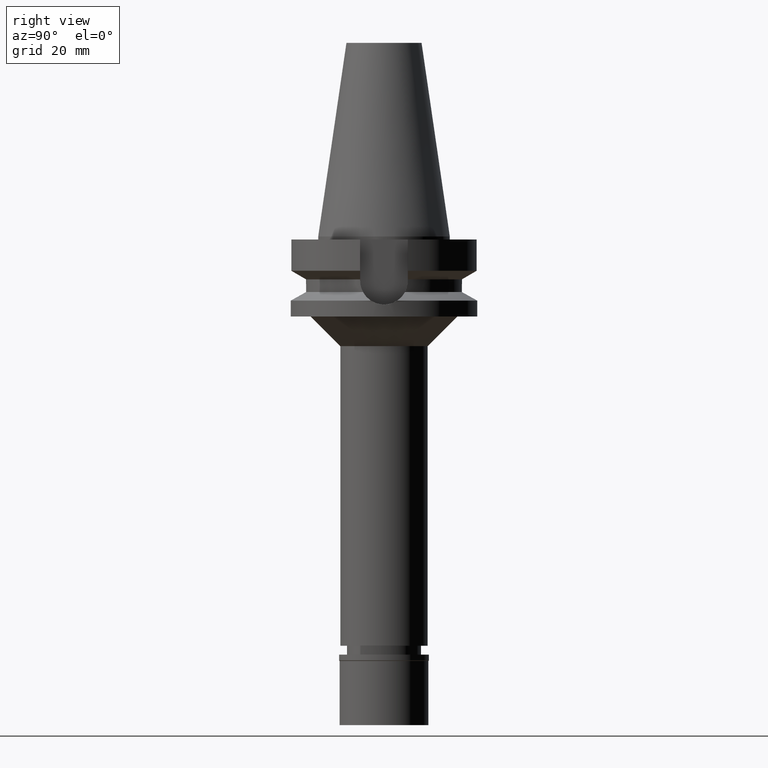
[diagram: clean part render]
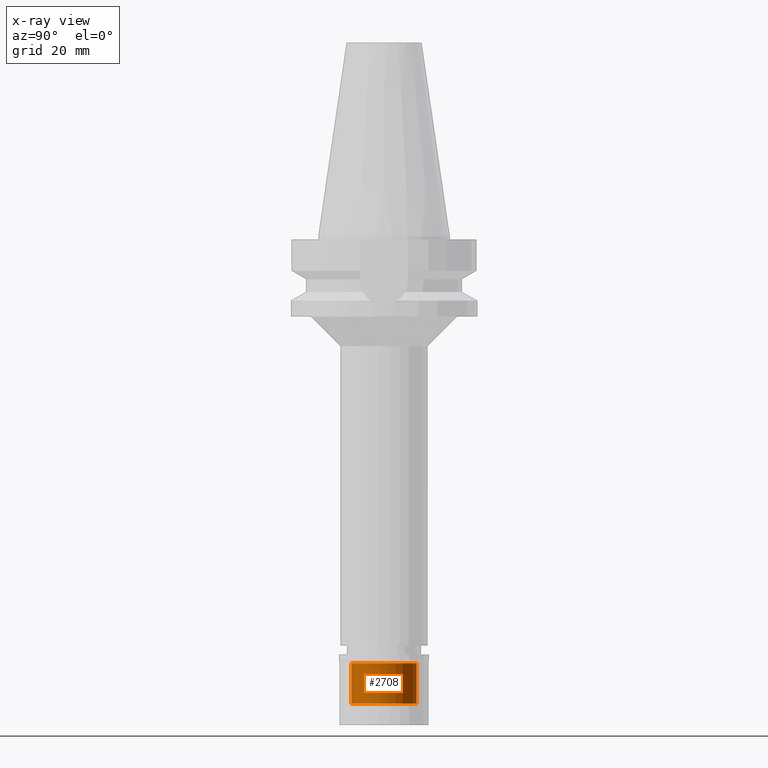
[diagram: x-ray — body ghosted, one internal face saturated and labeled with its STEP entity id]
A machine part, right view, then the same camera in x-ray: the body is ghosted and one INTERNAL B-rep face — a face not visible from any outside direction — is saturated and labeled: STEP entity #2708.
In plain terms, the highlighted cylindrical surface (edge-blend (fillet) strip) has radius 11 mm, axis along (0, 0, -1).
Its self-contained STEP definition (entity closure, byte-faithful):
#237 = DIRECTION ( 'NONE',  ( 0.0000000000000000000, 0.0000000000000000000, -1.000000000000000000 ) ) ;
#251 = EDGE_CURVE ( 'NONE', #2824, #743, #2410, .T. ) ;
#252 = DIRECTION ( 'NONE',  ( 0.0000000000000000000, 0.0000000000000000000, 1.000000000000000000 ) ) ;
#279 = ORIENTED_EDGE ( 'NONE', *, *, #1142, .T. ) ;
#309 = EDGE_CURVE ( 'NONE', #2682, #2824, #2232, .T. ) ;
#534 = AXIS2_PLACEMENT_3D ( 'NONE', #2732, #2483, #791 ) ;
#594 = FACE_OUTER_BOUND ( 'NONE', #1378, .T. ) ;
#657 = CARTESIAN_POINT ( 'NONE',  ( 0.0000000000000000000, 11.00000000000000000, -16.50000000000000000 ) ) ;
#692 = CARTESIAN_POINT ( 'NONE',  ( 0.0000000000000000000, -11.00000000000000000, -2.899999999999999911 ) ) ;
#743 = VERTEX_POINT ( 'NONE', #692 ) ;
#791 = DIRECTION ( 'NONE',  ( 0.0000000000000000000, -1.000000000000000000, 0.0000000000000000000 ) ) ;
#901 = DIRECTION ( 'NONE',  ( 0.0000000000000000000, -1.000000000000000000, 0.0000000000000000000 ) ) ;
#982 = CARTESIAN_POINT ( 'NONE',  ( 0.0000000000000000000, -11.00000000000000000, -16.50000000000000000 ) ) ;
#1044 = ORIENTED_EDGE ( 'NONE', *, *, #251, .T. ) ;
#1088 = CARTESIAN_POINT ( 'NONE',  ( 0.0000000000000000000, 11.00000000000000000, -16.50000000000000000 ) ) ;
#1142 = EDGE_CURVE ( 'NONE', #743, #1940, #2990, .T. ) ;
#1224 = DIRECTION ( 'NONE',  ( 0.0000000000000000000, 1.000000000000000000, 0.0000000000000000000 ) ) ;
#1234 = VECTOR ( 'NONE', #2335, 1000.000000000000000 ) ;
#1285 = CARTESIAN_POINT ( 'NONE',  ( 0.0000000000000000000, 11.00000000000000000, -2.899999999999999911 ) ) ;
#1378 = EDGE_LOOP ( 'NONE', ( #2239, #1044, #279, #1441 ) ) ;
#1441 = ORIENTED_EDGE ( 'NONE', *, *, #2769, .F. ) ;
#1616 = CARTESIAN_POINT ( 'NONE',  ( 0.0000000000000000000, -11.00000000000000000, -16.50000000000000000 ) ) ;
#1684 = CARTESIAN_POINT ( 'NONE',  ( 0.0000000000000000000, 0.0000000000000000000, -16.50000000000000000 ) ) ;
#1772 = DIRECTION ( 'NONE',  ( 0.0000000000000000000, 0.0000000000000000000, 1.000000000000000000 ) ) ;
#1940 = VERTEX_POINT ( 'NONE', #1285 ) ;
#2137 = CARTESIAN_POINT ( 'NONE',  ( 0.0000000000000000000, 0.0000000000000000000, -2.899999999999999911 ) ) ;
#2220 = VECTOR ( 'NONE', #252, 1000.000000000000000 ) ;
#2232 = CIRCLE ( 'NONE', #2772, 11.00000000000000000 ) ;
#2239 = ORIENTED_EDGE ( 'NONE', *, *, #309, .T. ) ;
#2273 = CYLINDRICAL_SURFACE ( 'NONE', #534, 11.00000000000000000 ) ;
#2335 = DIRECTION ( 'NONE',  ( 0.0000000000000000000, 0.0000000000000000000, 1.000000000000000000 ) ) ;
#2410 = LINE ( 'NONE', #982, #2220 ) ;
#2483 = DIRECTION ( 'NONE',  ( 0.0000000000000000000, 0.0000000000000000000, -1.000000000000000000 ) ) ;
#2682 = VERTEX_POINT ( 'NONE', #1088 ) ;
#2708 = ADVANCED_FACE ( 'NONE', ( #594 ), #2273, .F. ) ;
#2732 = CARTESIAN_POINT ( 'NONE',  ( 0.0000000000000000000, 0.0000000000000000000, 0.0000000000000000000 ) ) ;
#2769 = EDGE_CURVE ( 'NONE', #2682, #1940, #2829, .T. ) ;
#2772 = AXIS2_PLACEMENT_3D ( 'NONE', #1684, #237, #1224 ) ;
#2824 = VERTEX_POINT ( 'NONE', #1616 ) ;
#2829 = LINE ( 'NONE', #657, #1234 ) ;
#2883 = AXIS2_PLACEMENT_3D ( 'NONE', #2137, #1772, #901 ) ;
#2990 = CIRCLE ( 'NONE', #2883, 11.00000000000000000 ) ;